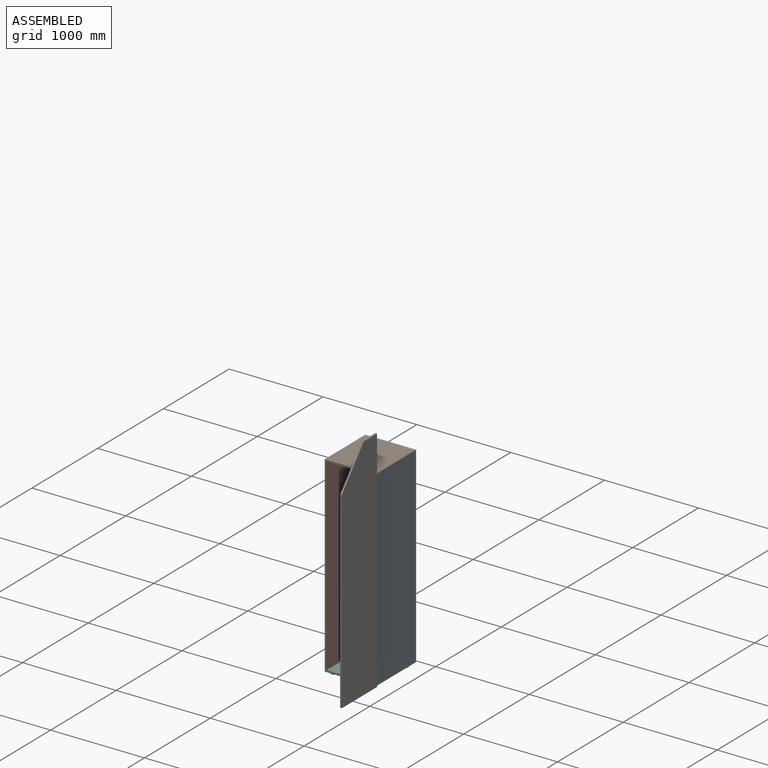
[diagram: assembled view]
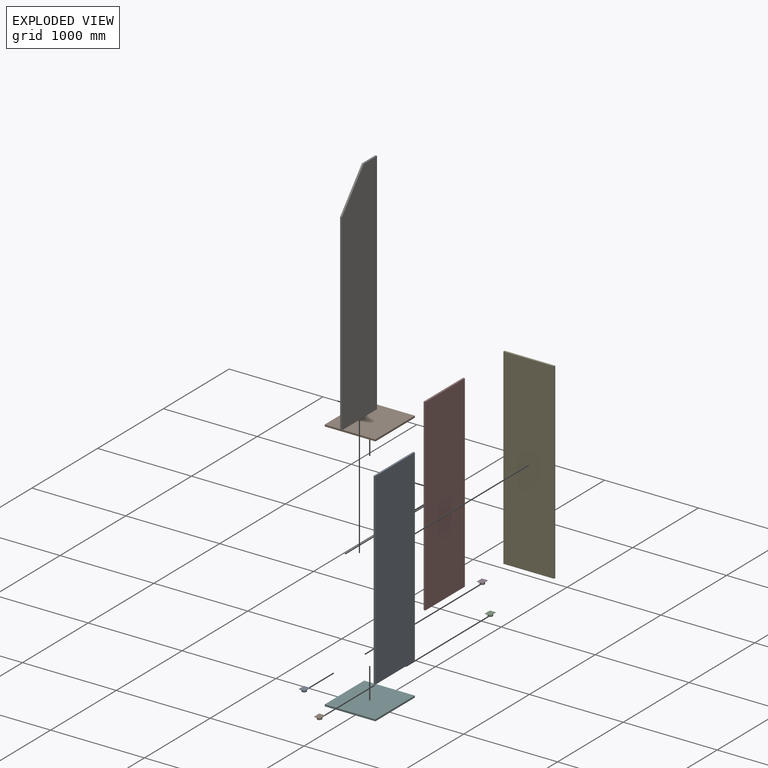
[diagram: exploded view]
GUIDED TOUR — FREECAD ASSEMBLY "wardrobe_corpus00_jan"

This assembly has 10 components, labeled P0..P9 below (a component is one placed body or linked part; the same part can appear more than once), held together by 9 modeled joints. A joint is a constraint between two components; its type names the relative motion it leaves free:
  FASTENED — locks the two components together rigidly (no relative motion),
  REVOLUTE — leaves rotation about the listed axis free (a hinge).
Axis/direction vectors are unit vectors and 'through' points are millimeter coordinates, both in the assembly's world frame.

MATES
  1. FASTENED [Fixed] "Joint002": P4 <-> P5, direction (-1.000, 0.000, 0.000) through (0.00, 300.00, 0.00) mm
  2. FASTENED [Fixed] "Joint": P8 <-> P5, direction (0.000, 1.000, 0.000) through (270.00, 0.00, 19.00) mm
  3. FASTENED [Fixed] "Joint003": P7 <-> P5, direction (0.000, 1.000, 0.000) through (-270.00, 0.00, 19.00) mm
  4. FASTENED [Fixed] "Joint004": P9 <-> P8, direction (0.000, 1.000, 0.000) through (270.00, 0.00, 2026.00) mm
  5. FASTENED [Fixed] "Joint005": P0 <-> P5, direction (0.000, 1.000, 0.000) through (-270.00, -300.00, 0.00) mm
  6. FASTENED [Fixed] "Joint006": P5 <-> P1, direction (0.000, 1.000, 0.000) through (250.00, -240.00, 0.00) mm
  7. FASTENED [Fixed] "Joint007": P2 <-> P5, direction (0.000, -1.000, 0.000) through (270.00, 300.00, 0.00) mm
  8. FASTENED [Fixed] "Joint008": P3 <-> P5, direction (0.000, 1.000, 0.000) through (-270.00, 300.00, 0.00) mm
  9. REVOLUTE [Revolute] "Joint009": P6 <-> P5, axis (0.000, 0.000, 1.000) through (270.00, -300.00, 2.50) mm

ASSEMBLY ORDER
  1. P8 — the base component [order verified]
  2. P7 [order verified]
  3. P5 [order verified]
  4. P3 [order verified]
  5. P1 [order verified]
  6. P2 [order verified]
  7. P0 [order verified]
  8. P9 [order verified]
  9. P6 [order verified]
  10. P4 [order verified]
Order-tag legend:
  [order verified] — this step's position reverses a verified removal order: the component was checked to insert without passing through the ones already placed.

Of the 10 components, 6 carry a construction recipe — the FreeCAD feature program (sketches with constraints, then the solid features that consume them) that regenerates the part from scratch, quoted from this document or from the linked companion document it references; the rest are supplied as boundary geometry only. The tour below walks the components in assembly order: each is shown spotlighted twice — in the assembled view, then in the exploded view, where a leader line traces a displaced component back to its assembled socket (components that stay in place when exploded have no leader line; saturated green if recipe-attached, orange if geometry-only; every other component desaturated gray) — followed by its recipe or geometry summary and the mates that hold it.
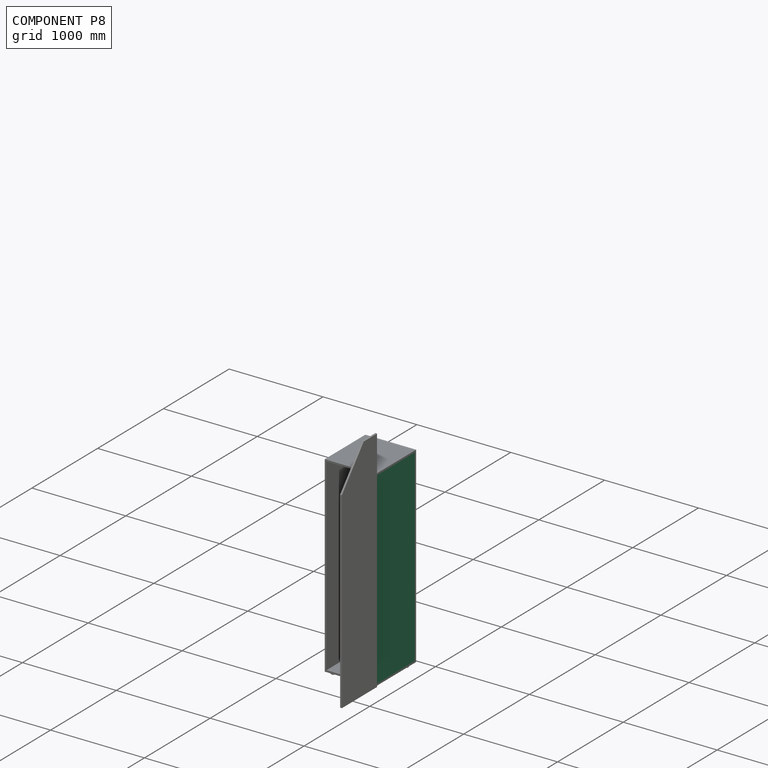
[diagram: component P8 — assembled]
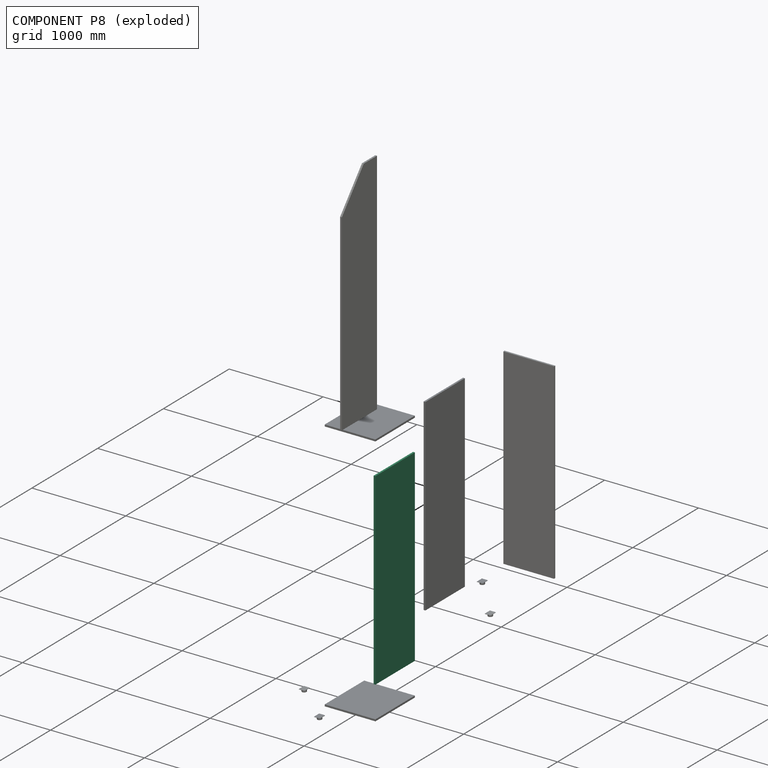
[diagram: component P8 — exploded]
COMPONENT P8 — recipe-attached ("wardrobe_right_corpus00_jan", a linked part whose construction recipe lives in a companion FreeCAD document of the same project; that document's serialized recipe follows).
Held by: FASTENED mate "Joint" to P5; FASTENED mate "Joint004" to P9.
Construction recipe (the companion document, serialized — sketch geometry with constraints, then the solid features built on it; lengths are millimeters unless a unit is written):

FCSTD DOCUMENT  (FreeCAD 1.0RUnknown)
Label: wardrobe_right_corpus00_jan
License: All rights reserved
LicenseURL: https://en.wikipedia.org/wiki/All_rights_reserved
objects: Sketcher::SketchObject×1, PartDesign::Pad×1, PartDesign::CoordinateSystem×1, PartDesign::Body×1
note: 7 computed .brp shape members not serialized (recipe doc carries the construction recipe); baked Part::Feature solids carry a one-line shape summary decoded from their .brp
EXTERNAL_REF file=../../mastersketch.FCStd obj=Spreadsheet

FEATURE [Sketcher::SketchObject] Sketch002
  ArcFitTolerance = 1e-06
  AttachmentSupport = -> [YZ_Plane004]
  FullyConstrained = true
  MakeInternals = true
  MapMode = 5
  Placement = pos=(0,0,0) rot=(0.57735,0.57735,0.57735;2.0944rad)
  expr: Constraints[10] = mastersketch#Spreadsheet.corpus_depth
  expr: Constraints[11] = mastersketch#Spreadsheet.corpus_height - 2 * mastersketch#Spreadsheet.corpus_outer_thickness
  sketch-geometry (5):
    g0: LineSegment StartX=-300 StartY=-1003.5 StartZ=0 EndX=300 EndY=-1003.5 EndZ=0
    g1: LineSegment StartX=300 StartY=-1003.5 StartZ=0 EndX=300 EndY=1003.5 EndZ=0
    g2: LineSegment StartX=300 StartY=1003.5 StartZ=0 EndX=-300 EndY=1003.5 EndZ=0
    g3: LineSegment StartX=-300 StartY=1003.5 StartZ=0 EndX=-300 EndY=-1003.5 EndZ=0
    g4: GeomPoint [constr] X=0 Y=0 Z=0
  constraints (12):
    c: Coincident(g0,g1)
    c: Coincident(g1,g2)
    c: Coincident(g2,g3)
    c: Coincident(g3,g0)
    c: Horizontal(g0)
    c: Horizontal(g2)
    c: Vertical(g1)
    c: Vertical(g3)
    c: Symmetric(g2,g0,g4)
    c: Coincident(g4,g-1)
    c: DistanceX(g0,g0) = 600
    c: DistanceY(g3,g3) = 2007
FEATURE [PartDesign::Pad] Pad002
  Direction = (1,0,0)
  Length = 19
  Length2 = 10
  Placement = pos=(0,0,0) rot=(1,1,1;2.0944rad)
  Profile = -> Sketch002
  ReferenceAxis = -> Sketch002 [N_Axis]
  Refine = true
  Suppressed = false
  Type = 0
  expr: Length = mastersketch#Spreadsheet.corpus_outer_thickness
FEATURE [PartDesign::CoordinateSystem] LCS_bottom
  AttacherType = Attacher::AttachEngine3D
  AttachmentSupport = -> [Pad002]
  MapMode = 45
  Placement = pos=(19,-1.82e-14,-1003.5) rot=(0,0.707107,0.707107;3.14159rad)
FEATURE [PartDesign::Body] Body002  label="wardrobe_right_corpus00_jan"
  AllowCompound = false
  Group = -> [Sketch002,Pad002,LCS_bottom]
  Origin = -> Origin004
  Tip = -> Pad002
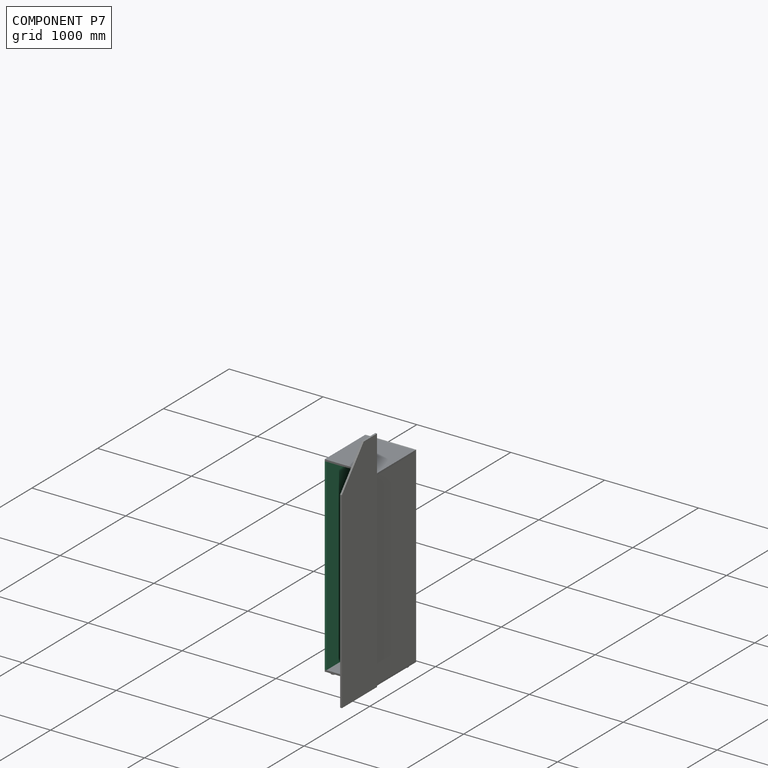
[diagram: component P7 — assembled]
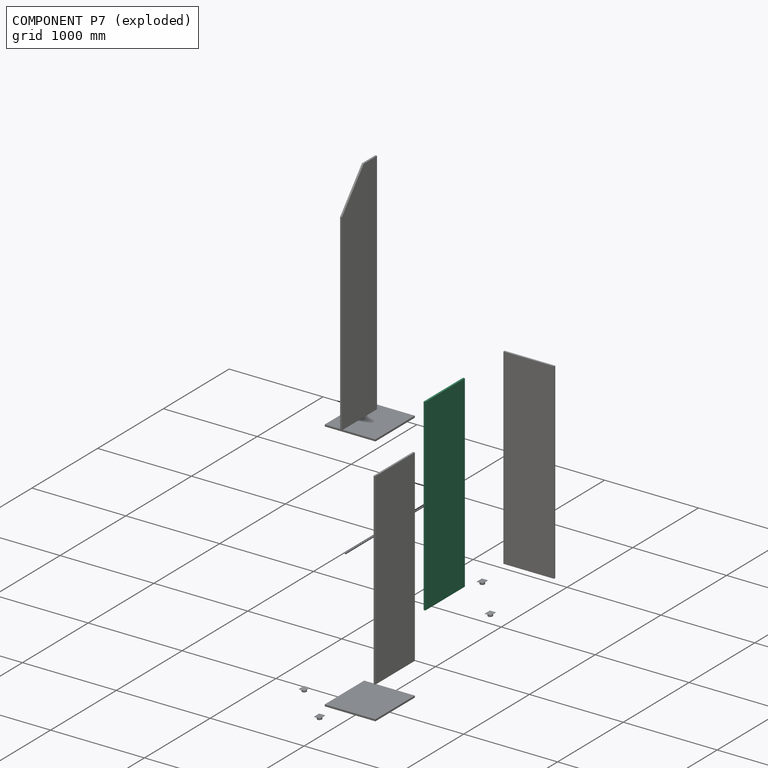
[diagram: component P7 — exploded]
COMPONENT P7 — recipe-attached ("wardrobe_left_corpus00_jan", a linked part whose construction recipe lives in a companion FreeCAD document of the same project; that document's serialized recipe follows).
Held by: FASTENED mate "Joint003" to P5.
Construction recipe (the companion document, serialized — sketch geometry with constraints, then the solid features built on it; lengths are millimeters unless a unit is written):

FCSTD DOCUMENT  (FreeCAD 1.0RUnknown)
Label: wardrobe_left_corpus00_jan
License: All rights reserved
LicenseURL: https://en.wikipedia.org/wiki/All_rights_reserved
objects: PartDesign::CoordinateSystem×3, Sketcher::SketchObject×1, PartDesign::Pad×1, PartDesign::Body×1
note: 9 computed .brp shape members not serialized (recipe doc carries the construction recipe); baked Part::Feature solids carry a one-line shape summary decoded from their .brp
EXTERNAL_REF file=../../mastersketch.FCStd obj=Spreadsheet

FEATURE [Sketcher::SketchObject] Sketch001
  ArcFitTolerance = 1e-06
  AttachmentSupport = -> [YZ_Plane001]
  FullyConstrained = true
  MakeInternals = false
  MapMode = 5
  Placement = pos=(0,0,0) rot=(0.57735,0.57735,0.57735;2.0944rad)
  expr: Constraints[10] = mastersketch#Spreadsheet.corpus_depth
  expr: Constraints[11] = mastersketch#Spreadsheet.corpus_height - 2 * mastersketch#Spreadsheet.corpus_outer_thickness
  sketch-geometry (5):
    g0: LineSegment StartX=-300 StartY=-1003.5 StartZ=0 EndX=300 EndY=-1003.5 EndZ=0
    g1: LineSegment StartX=300 StartY=-1003.5 StartZ=0 EndX=300 EndY=1003.5 EndZ=0
    g2: LineSegment StartX=300 StartY=1003.5 StartZ=0 EndX=-300 EndY=1003.5 EndZ=0
    g3: LineSegment StartX=-300 StartY=1003.5 StartZ=0 EndX=-300 EndY=-1003.5 EndZ=0
    g4: GeomPoint [constr] X=0 Y=0 Z=0
  constraints (12):
    c: Coincident(g0,g1)
    c: Coincident(g1,g2)
    c: Coincident(g2,g3)
    c: Coincident(g3,g0)
    c: Horizontal(g0)
    c: Horizontal(g2)
    c: Vertical(g1)
    c: Vertical(g3)
    c: Symmetric(g2,g0,g4)
    c: Coincident(g4,g-1)
    c: DistanceX(g0,g0) = 600
    c: DistanceY(g3,g3) = 2007
FEATURE [PartDesign::Pad] Pad001
  Direction = (1,0,0)
  Length = 19
  Length2 = 10
  Placement = pos=(0,0,0) rot=(1,1,1;2.0944rad)
  Profile = -> Sketch001
  ReferenceAxis = -> Sketch001 [N_Axis]
  Refine = true
  Suppressed = false
  Type = 0
  expr: Length = mastersketch#Spreadsheet.corpus_outer_thickness
FEATURE [PartDesign::CoordinateSystem] LCS_bottom
  AttacherType = Attacher::AttachEngine3D
  AttachmentSupport = -> [Pad001]
  MapMode = 45
  Placement = pos=(0,-1.42e-14,-1003.5) rot=(0,0.707107,0.707107;3.14159rad)
FEATURE [PartDesign::CoordinateSystem] LCS_top
  AttacherType = Attacher::AttachEngine3D
  AttachmentSupport = -> [Pad001]
  MapMode = 45
  Placement = pos=(0,1.42e-14,1003.5) rot=(0,0.707107,0.707107;3.14159rad)
FEATURE [PartDesign::CoordinateSystem] LCS_inner_bottom
  AttacherType = Attacher::AttachEngine3D
  AttachmentSupport = -> [Pad001]
  MapMode = 45
  Placement = pos=(19,-1.82e-14,-1003.5) rot=(0,0.707107,0.707107;3.14159rad)
FEATURE [PartDesign::Body] Body001  label="wardrobe_left_corpus00_jan"
  AllowCompound = false
  Group = -> [Sketch001,Pad001,LCS_bottom,LCS_top,LCS_inner_bottom]
  Origin = -> Origin001
  Tip = -> Pad001
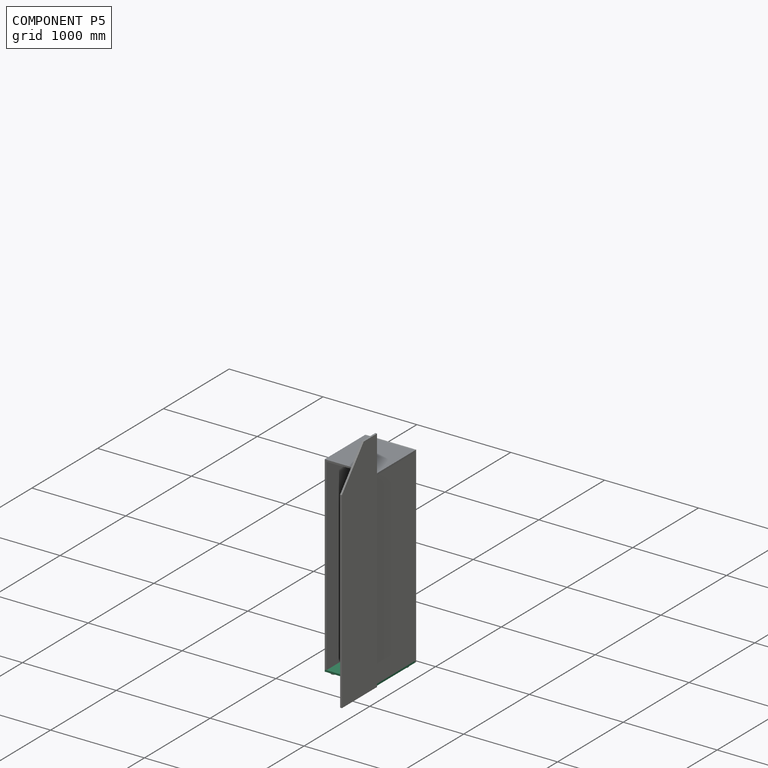
[diagram: component P5 — assembled]
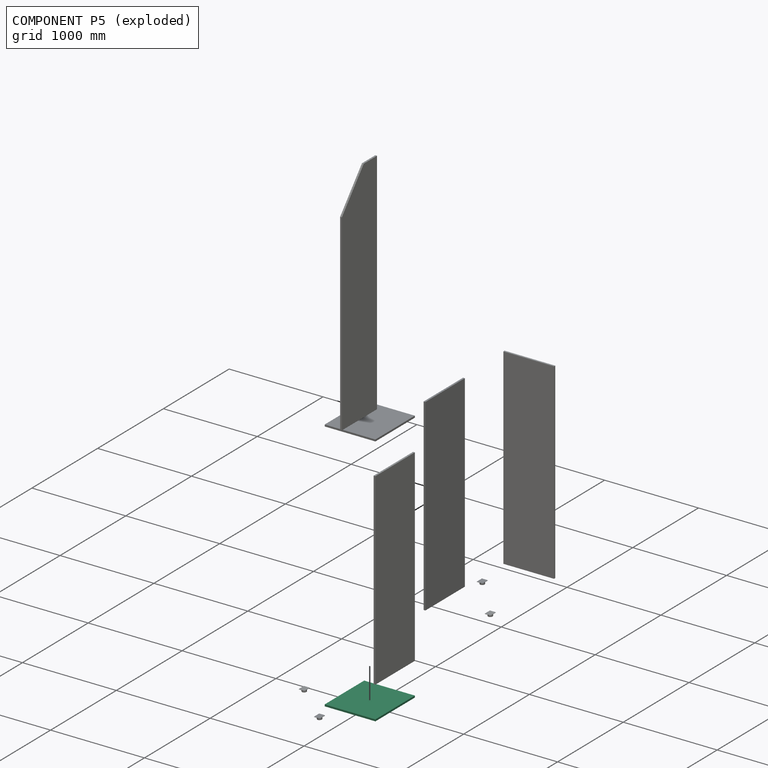
[diagram: component P5 — exploded]
COMPONENT P5 — recipe-attached ("wardrobe_base_jan", a linked part whose construction recipe lives in a companion FreeCAD document of the same project; that document's serialized recipe follows).
Held by: FASTENED mate "Joint002" to P4; FASTENED mate "Joint" to P8; FASTENED mate "Joint003" to P7; FASTENED mate "Joint005" to P0; FASTENED mate "Joint006" to P1; FASTENED mate "Joint007" to P2; FASTENED mate "Joint008" to P3; REVOLUTE mate "Joint009" to P6.
Construction recipe (the companion document, serialized — sketch geometry with constraints, then the solid features built on it; lengths are millimeters unless a unit is written):

FCSTD DOCUMENT  (FreeCAD 1.0RUnknown)
Label: wardrobe_base_jan
License: All rights reserved
LicenseURL: https://en.wikipedia.org/wiki/All_rights_reserved
objects: PartDesign::CoordinateSystem×9, Sketcher::SketchObject×2, PartDesign::Pad×1, PartDesign::Body×1
note: 17 computed .brp shape members not serialized (recipe doc carries the construction recipe); baked Part::Feature solids carry a one-line shape summary decoded from their .brp
EXTERNAL_REF file=../../mastersketch.FCStd obj=Spreadsheet

FEATURE [Sketcher::SketchObject] Sketch
  ArcFitTolerance = 1e-06
  AttachmentSupport = -> [XY_Plane]
  FullyConstrained = true
  MakeInternals = false
  MapMode = 5
  expr: Constraints[10] = mastersketch#Spreadsheet.corpus_width
  expr: Constraints[11] = mastersketch#Spreadsheet.corpus_depth
  sketch-geometry (5):
    g0: LineSegment StartX=-270 StartY=-300 StartZ=0 EndX=270 EndY=-300 EndZ=0
    g1: LineSegment StartX=270 StartY=-300 StartZ=0 EndX=270 EndY=300 EndZ=0
    g2: LineSegment StartX=270 StartY=300 StartZ=0 EndX=-270 EndY=300 EndZ=0
    g3: LineSegment StartX=-270 StartY=300 StartZ=0 EndX=-270 EndY=-300 EndZ=0
    g4: GeomPoint [constr] X=0 Y=0 Z=0
  constraints (12):
    c: Coincident(g0,g1)
    c: Coincident(g1,g2)
    c: Coincident(g2,g3)
    c: Coincident(g3,g0)
    c: Horizontal(g0)
    c: Horizontal(g2)
    c: Vertical(g1)
    c: Vertical(g3)
    c: Symmetric(g2,g0,g4)
    c: Coincident(g4,g-1)
    c: DistanceX(g0,g0) = 540
    c: DistanceY(g3,g3) = 600
FEATURE [PartDesign::Pad] Pad
  Direction = (0,0,1)
  Length = 19
  Length2 = 10
  Profile = -> Sketch
  ReferenceAxis = -> Sketch [N_Axis]
  Refine = true
  Suppressed = false
  Type = 0
  expr: Length = mastersketch#Spreadsheet.corpus_outer_thickness
FEATURE [PartDesign::CoordinateSystem] LCS_1  label="LCS_left"
  AttacherType = Attacher::AttachEngine3D
  AttachmentSupport = -> [Pad]
  MapMode = 45
  Placement = pos=(-270,1.42e-14,19) rot=(0,0.707107,0.707107;3.14159rad)
FEATURE [PartDesign::CoordinateSystem] LCS_right  label="LCS-right"
  AttacherType = Attacher::AttachEngine3D
  AttachmentSupport = -> [Pad]
  MapMode = 45
  Placement = pos=(270,-1.42e-14,19) rot=(0,0.707107,0.707107;3.14159rad)
FEATURE [PartDesign::CoordinateSystem] LCS_center
  AttacherType = Attacher::AttachEngine3D
FEATURE [Sketcher::SketchObject] Sketch_1  label="feet_placement"
  ArcFitTolerance = 1e-06
  AttachmentSupport = -> [Pad]
  FullyConstrained = true
  MakeInternals = false
  MapMode = 5
  Placement = pos=(0,0,0) rot=(1,0,0;3.14159rad)
  expr: Constraints[10] = mastersketch#Spreadsheet.corpus_width - 100
  expr: Constraints[11] = mastersketch#Spreadsheet.corpus_depth - 140
  sketch-geometry (5):
    g0: LineSegment StartX=-220 StartY=-230 StartZ=0 EndX=220 EndY=-230 EndZ=0
    g1: LineSegment StartX=220 StartY=-230 StartZ=0 EndX=220 EndY=230 EndZ=0
    g2: LineSegment StartX=220 StartY=230 StartZ=0 EndX=-220 EndY=230 EndZ=0
    g3: LineSegment StartX=-220 StartY=230 StartZ=0 EndX=-220 EndY=-230 EndZ=0
    g4: GeomPoint [constr] X=0 Y=0 Z=0
  constraints (12):
    c: Coincident(g0,g1)
    c: Coincident(g1,g2)
    c: Coincident(g2,g3)
    c: Coincident(g3,g0)
    c: Horizontal(g0)
    c: Horizontal(g2)
    c: Vertical(g1)
    c: Vertical(g3)
    c: Symmetric(g2,g0,g4)
    c: Coincident(g4,g-1)
    c: DistanceX(g0,g0) = 440
    c: DistanceY(g3,g3) = 460
FEATURE [PartDesign::CoordinateSystem] LCS_2  label="LCS_feet0"
  AttacherType = Attacher::AttachEngine3D
  AttachmentSupport = -> [Sketch_1]
  MapMode = 1
  Placement = pos=(-220,-230,0) rot=(0,0,1;0rad)
FEATURE [PartDesign::CoordinateSystem] LCS_feet1
  AttacherType = Attacher::AttachEngine3D
  AttachmentSupport = -> [Sketch_1]
  MapMode = 1
  Placement = pos=(220,-230,0) rot=(0,0,1;0rad)
FEATURE [PartDesign::CoordinateSystem] LCS_feet2
  AttacherType = Attacher::AttachEngine3D
  AttachmentSupport = -> [Sketch_1]
  MapMode = 1
  Placement = pos=(220,230,0) rot=(0,0,1;0rad)
FEATURE [PartDesign::CoordinateSystem] LCS_feet3
  AttacherType = Attacher::AttachEngine3D
  AttachmentSupport = -> [Sketch_1]
  MapMode = 1
  Placement = pos=(-220,230,0) rot=(0,0,1;0rad)
FEATURE [PartDesign::CoordinateSystem] LCS_back
  AttacherType = Attacher::AttachEngine3D
  AttachmentSupport = -> [Pad]
  MapMode = 45
  Placement = pos=(0,300,0) rot=(0.57735,0.57735,0.57735;2.0944rad)
FEATURE [PartDesign::CoordinateSystem] LCS_door
  AttacherType = Attacher::AttachEngine3D
  AttachmentSupport = -> [Pad]
  MapMode = 7
  Placement = pos=(270,-300,0) rot=(0,1,0;3.14159rad)
FEATURE [PartDesign::Body] Body  label="wardrobe_base_jan"
  AllowCompound = false
  Group = -> [Sketch,Pad,LCS_1,LCS_right,LCS_center,Sketch_1,LCS_2,LCS_feet1,LCS_feet2,LCS_feet3,LCS_back,LCS_door]
  Origin = -> Origin
  Tip = -> Pad
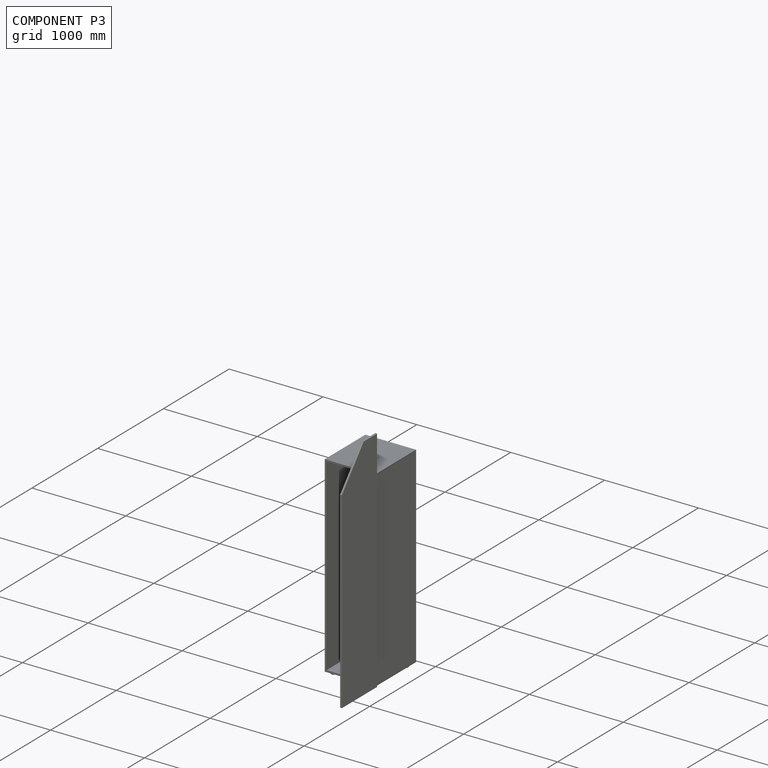
[diagram: component P3 — assembled]
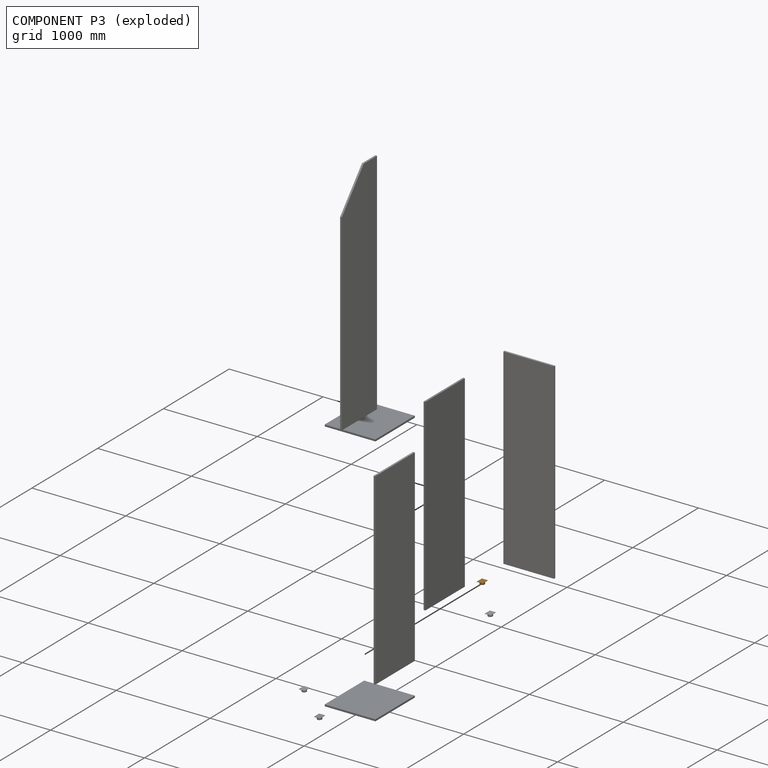
[diagram: component P3 — exploded]
COMPONENT P3 — geometry summary ("hettich-level-adjustment003"; no construction recipe available for this part):
  bounding box: 80.0 x 63.5 x 30.0 mm
  tessellated surface: 2,424 triangles
  volume: 65169 mm^3 (43% of its bounding box)
  symmetry: 2-fold rotationally symmetric about the z axis; mirror-symmetric across its x mid-plane, y mid-plane
Held by: FASTENED mate "Joint008" to P5.
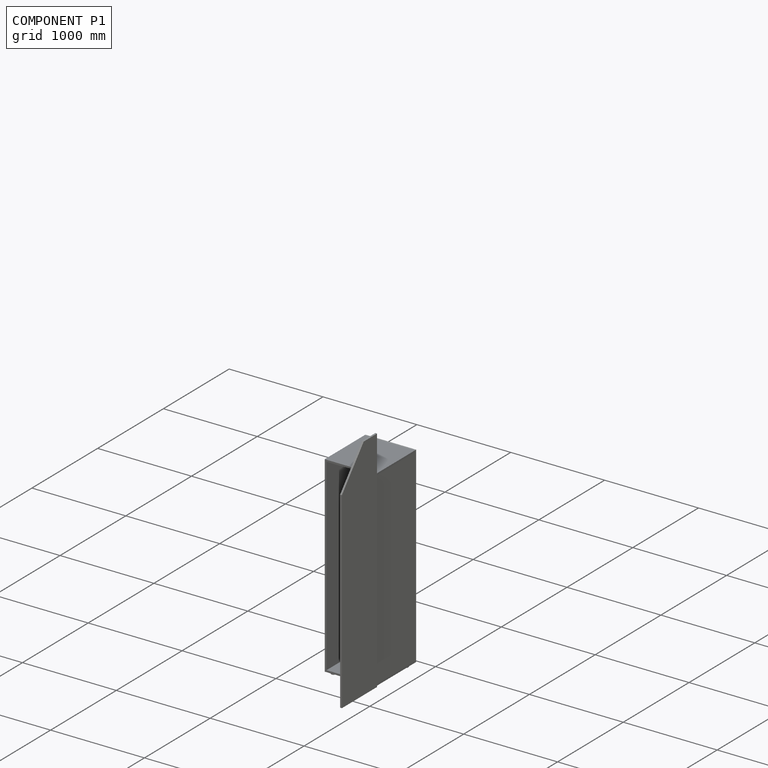
[diagram: component P1 — assembled]
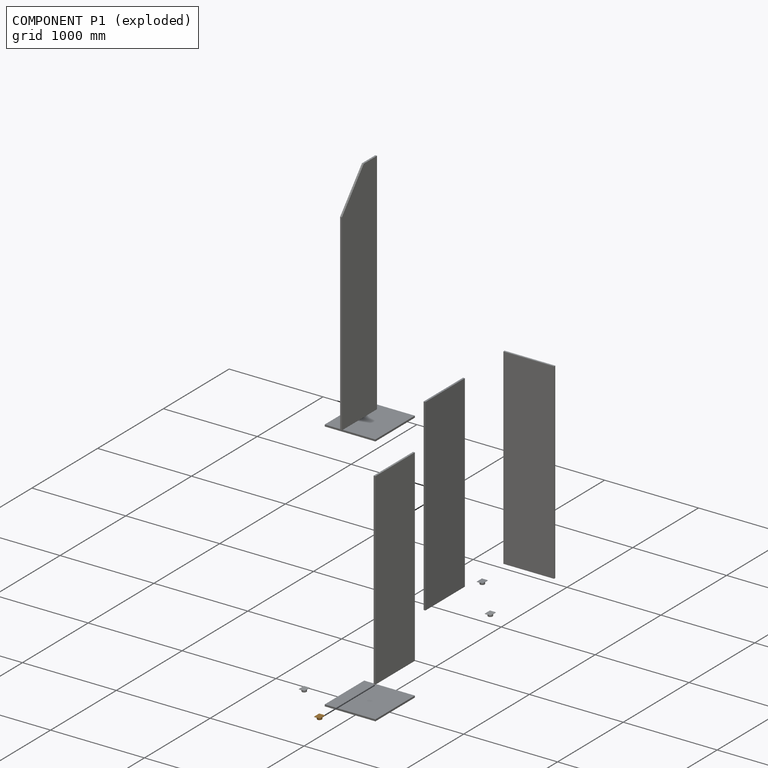
[diagram: component P1 — exploded]
COMPONENT P1 — geometry summary ("hettich-level-adjustment001"; no construction recipe available for this part):
  bounding box: 80.0 x 63.5 x 30.0 mm
  tessellated surface: 2,424 triangles
  volume: 65169 mm^3 (43% of its bounding box)
  symmetry: 2-fold rotationally symmetric about the z axis; mirror-symmetric across its x mid-plane, y mid-plane
Held by: FASTENED mate "Joint006" to P5.
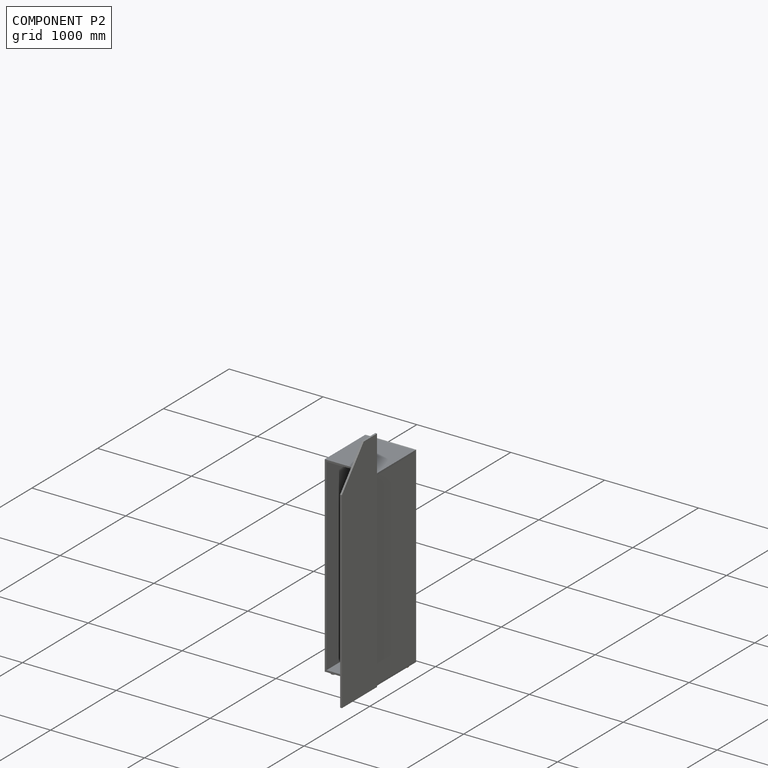
[diagram: component P2 — assembled]
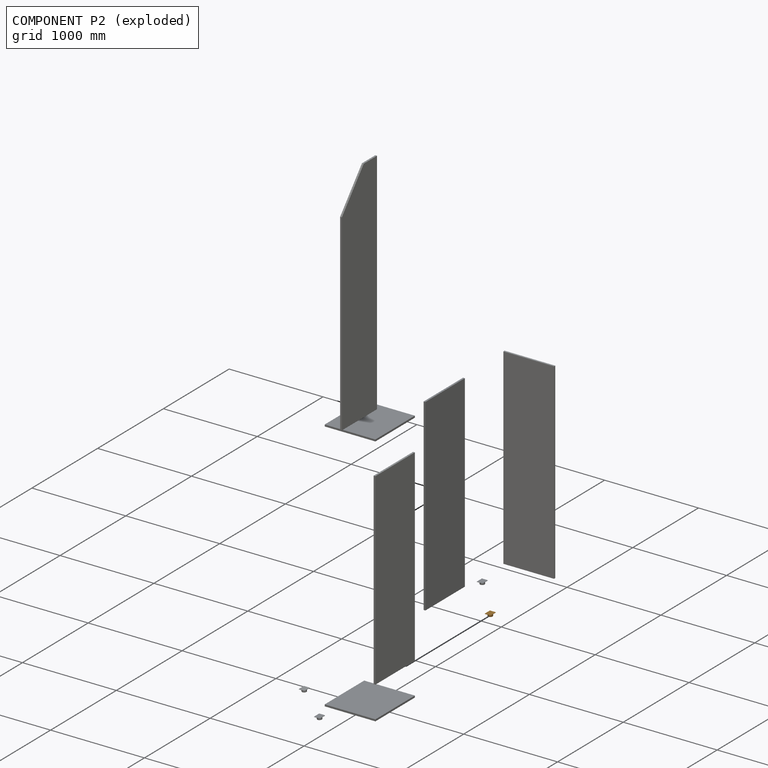
[diagram: component P2 — exploded]
COMPONENT P2 — geometry summary ("hettich-level-adjustment002"; no construction recipe available for this part):
  bounding box: 80.0 x 63.5 x 30.0 mm
  tessellated surface: 2,424 triangles
  volume: 65169 mm^3 (43% of its bounding box)
  symmetry: 2-fold rotationally symmetric about the z axis; mirror-symmetric across its x mid-plane, y mid-plane
Held by: FASTENED mate "Joint007" to P5.
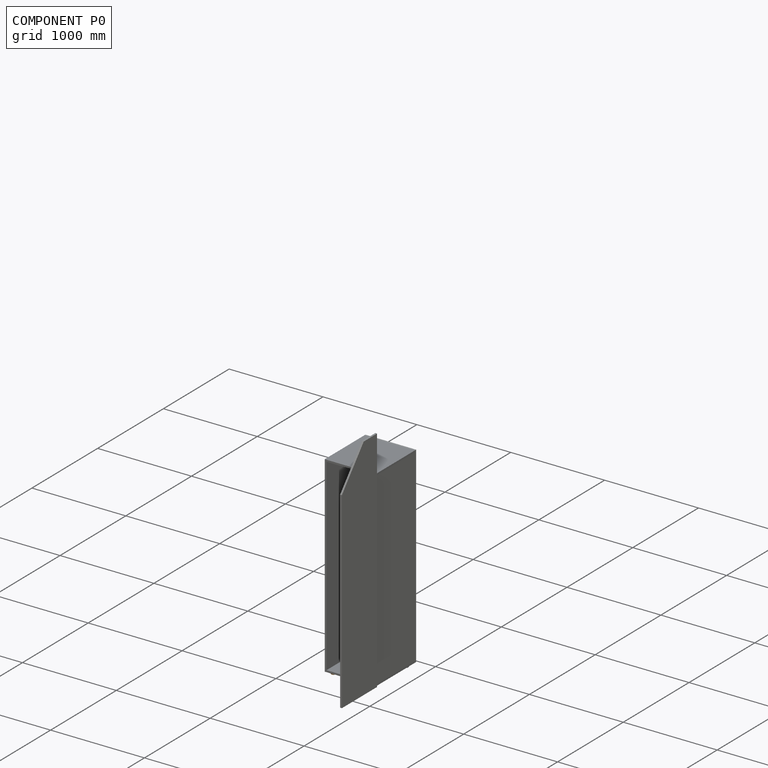
[diagram: component P0 — assembled]
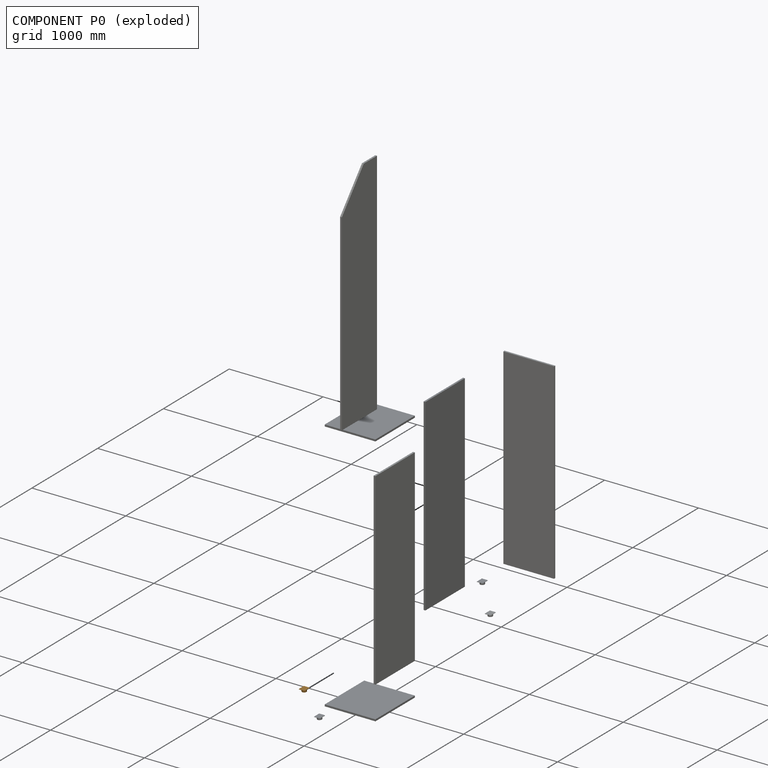
[diagram: component P0 — exploded]
COMPONENT P0 — geometry summary ("hettich-level-adjustment"; no construction recipe available for this part):
  bounding box: 80.0 x 63.5 x 30.0 mm
  tessellated surface: 2,424 triangles
  volume: 65169 mm^3 (43% of its bounding box)
  symmetry: 2-fold rotationally symmetric about the z axis; mirror-symmetric across its x mid-plane, y mid-plane
Held by: FASTENED mate "Joint005" to P5.
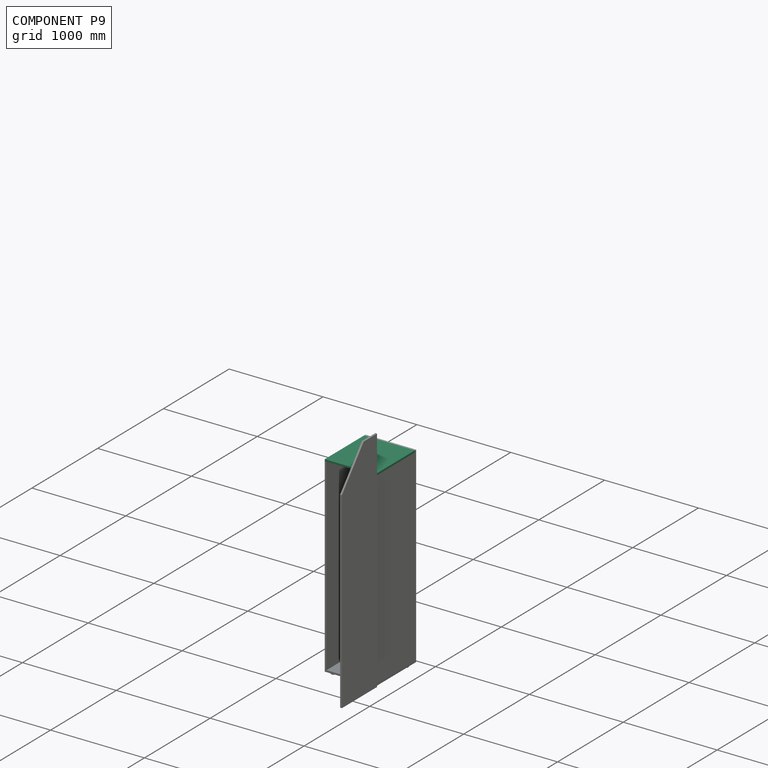
[diagram: component P9 — assembled]
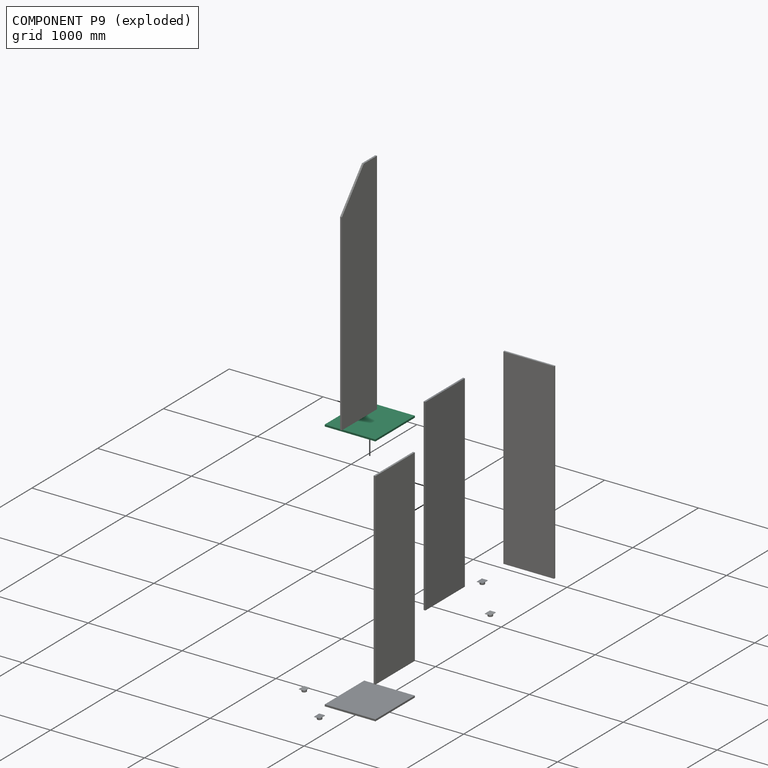
[diagram: component P9 — exploded]
COMPONENT P9 — recipe-attached ("wardrobe_top_jan", a linked part whose construction recipe lives in a companion FreeCAD document of the same project; that document's serialized recipe follows).
Held by: FASTENED mate "Joint004" to P8.
Construction recipe (the companion document, serialized — sketch geometry with constraints, then the solid features built on it; lengths are millimeters unless a unit is written):

FCSTD DOCUMENT  (FreeCAD 1.0RUnknown)
Label: wardrobe_top_jan
License: All rights reserved
LicenseURL: https://en.wikipedia.org/wiki/All_rights_reserved
objects: Sketcher::SketchObject×1, PartDesign::Pad×1, PartDesign::CoordinateSystem×1, PartDesign::Body×1
note: 7 computed .brp shape members not serialized (recipe doc carries the construction recipe); baked Part::Feature solids carry a one-line shape summary decoded from their .brp
EXTERNAL_REF file=../../mastersketch.FCStd obj=Spreadsheet

FEATURE [Sketcher::SketchObject] Sketch003
  ArcFitTolerance = 1e-06
  AttachmentSupport = -> [XY_Plane005]
  FullyConstrained = true
  MakeInternals = false
  MapMode = 5
  expr: Constraints[10] = mastersketch#Spreadsheet.corpus_width
  expr: Constraints[11] = mastersketch#Spreadsheet.corpus_depth
  sketch-geometry (5):
    g0: LineSegment StartX=-270 StartY=-300 StartZ=0 EndX=270 EndY=-300 EndZ=0
    g1: LineSegment StartX=270 StartY=-300 StartZ=0 EndX=270 EndY=300 EndZ=0
    g2: LineSegment StartX=270 StartY=300 StartZ=0 EndX=-270 EndY=300 EndZ=0
    g3: LineSegment StartX=-270 StartY=300 StartZ=0 EndX=-270 EndY=-300 EndZ=0
    g4: GeomPoint [constr] X=0 Y=0 Z=0
  constraints (12):
    c: Coincident(g0,g1)
    c: Coincident(g1,g2)
    c: Coincident(g2,g3)
    c: Coincident(g3,g0)
    c: Horizontal(g0)
    c: Horizontal(g2)
    c: Vertical(g1)
    c: Vertical(g3)
    c: Symmetric(g2,g0,g4)
    c: Coincident(g4,g-1)
    c: DistanceX(g0,g0) = 540
    c: DistanceY(g3,g3) = 600
FEATURE [PartDesign::Pad] Pad003
  Direction = (0,0,1)
  Length = 19
  Length2 = 10
  Profile = -> Sketch003
  ReferenceAxis = -> Sketch003 [N_Axis]
  Refine = true
  Suppressed = false
  Type = 0
  expr: Length = mastersketch#Spreadsheet.corpus_outer_thickness
FEATURE [PartDesign::CoordinateSystem] LCS_left
  AttacherType = Attacher::AttachEngine3D
  AttachmentSupport = -> [Pad003]
  MapMode = 45
  Placement = pos=(-270,1.42e-14,0) rot=(0,0.707107,0.707107;3.14159rad)
FEATURE [PartDesign::Body] Body003  label="wardrobe_top_jan"
  AllowCompound = false
  Group = -> [Sketch003,Pad003,LCS_left]
  Origin = -> Origin005
  Tip = -> Pad003
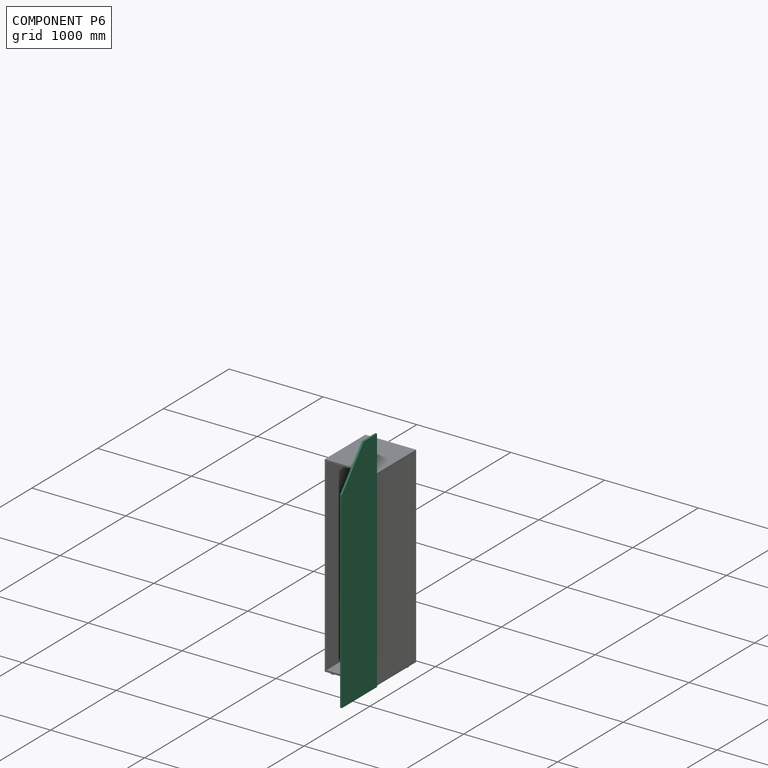
[diagram: component P6 — assembled]
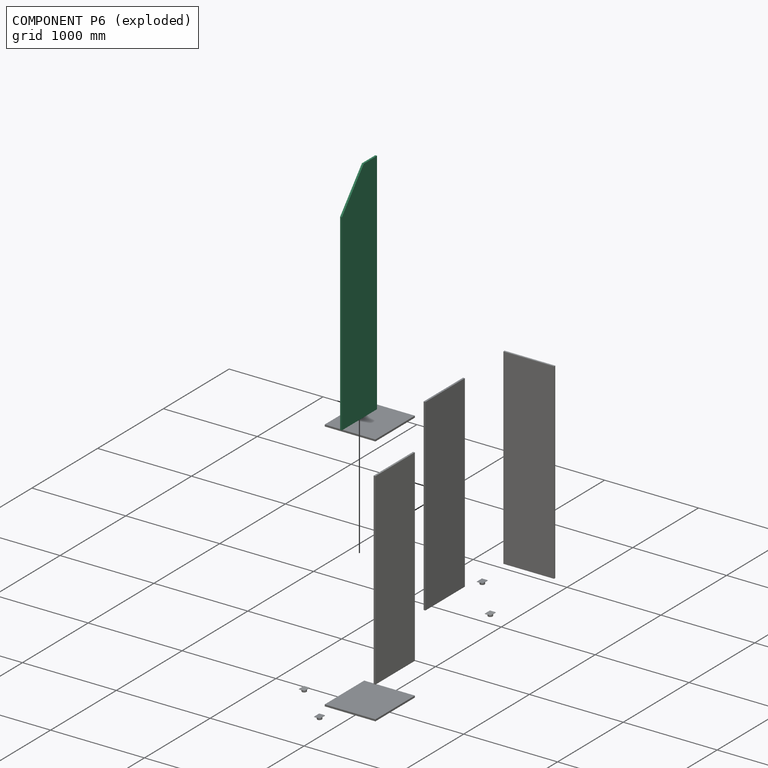
[diagram: component P6 — exploded]
COMPONENT P6 — recipe-attached ("wardrobe_door_corpus00_jan", a linked part whose construction recipe lives in a companion FreeCAD document of the same project; that document's serialized recipe follows).
Held by: REVOLUTE mate "Joint009" to P5.
Construction recipe (the companion document, serialized — sketch geometry with constraints, then the solid features built on it; lengths are millimeters unless a unit is written):

FCSTD DOCUMENT  (FreeCAD 1.0R39285 (Git))
Label: wardrobe_door_corpus00_jan
License: All rights reserved
LicenseURL: https://en.wikipedia.org/wiki/All_rights_reserved
objects: TechDraw::DrawViewDimension×7, PartDesign::CoordinateSystem×2, TechDraw::DrawProjGroupItem×2, Sketcher::SketchObject×1, PartDesign::Pad×1, PartDesign::Body×1, TechDraw::DrawSVGTemplate×1, TechDraw::DrawViewAnnotation×1, App::Part×1, TechDraw::DrawPage×1
note: 17 computed .brp shape members not serialized (recipe doc carries the construction recipe); baked Part::Feature solids carry a one-line shape summary decoded from their .brp
EXTERNAL_REF file=../../mastersheet.FCStd obj=Spreadsheet
EXTERNAL_REF file=../../mastersketch.FCStd obj=Sketch

FEATURE [Sketcher::SketchObject] Sketch
  ArcFitTolerance = 1e-06
  AttachmentSupport = -> [XY_Plane]
  FullyConstrained = true
  MakeInternals = false
  MapMode = 5
  expr: Constraints[0] = mastersketch#Sketch.Constraints.corpus00_door_height
  expr: Constraints[12] = mastersketch#Sketch.Constraints.alpha
  expr: Constraints[13] = mastersketch#Sketch.Constraints.corpus00_door_top
  expr: Constraints[5] = mastersheet#Spreadsheet.corpus_width - 5
  sketch-geometry (5):
    g0: LineSegment StartX=0 StartY=0 StartZ=0 EndX=0 EndY=2440 EndZ=0
    g1: LineSegment StartX=0 StartY=2440 StartZ=0 EndX=-202.892 EndY=2440 EndZ=0
    g2: LineSegment StartX=0 StartY=0 StartZ=0 EndX=-535 EndY=0 EndZ=0
    g3: LineSegment StartX=-535 StartY=0 StartZ=0 EndX=-535 EndY=2051.4 EndZ=0
    g4: LineSegment StartX=-535 StartY=2051.4 StartZ=0 EndX=-202.892 EndY=2440 EndZ=0
  constraints (14):
    c: Distance(g0) = 2440
    c: Coincident(g0,g-1)
    c: Vertical(g0)
    c: Coincident(g1,g0)
    c: Horizontal(g1)
    c: Distance(g2) = 535
    c: Coincident(g2,g0)
    c: PointOnObject(g2,g-1)
    c: Vertical(g3)
    c: Coincident(g4,g1)
    c: Coincident(g4,g3)
    c: Coincident(g3,g2)
    c: Angle(g3,g4) = 2.43442
    c: DistanceX(g1,g1) = 202.892
FEATURE [PartDesign::Pad] Pad
  Direction = (0,0,1)
  Length = 19
  Length2 = 10
  Profile = -> Sketch
  ReferenceAxis = -> Sketch [N_Axis]
  Refine = true
  Suppressed = false
  Type = 0
FEATURE [PartDesign::Body] Body  label="wardrobe_door_corpus00_jan"
  AllowCompound = false
  Group = -> [Sketch,Pad]
  Origin = -> Origin
  Tip = -> Pad
FEATURE [PartDesign::CoordinateSystem] LCS_right
  AttacherType = Attacher::AttachEngine3D
  AttachmentSupport = -> [Pad]
  MapMode = 7
  Placement = pos=(0,0,0) rot=(1,0,0;1.5708rad)
FEATURE [TechDraw::DrawSVGTemplate] Template  label="Vorlage"
  Height = 210
  Orientation = 1
  Template = <userpath>/scoop/apps/freecad/current/data/Mod/TechDraw/Templates/A4_Landscape_TD.svg
  Width = 297
FEATURE [TechDraw::DrawProjGroupItem] View  label="Oben"
  CoarseView = false
  Direction = (0,0,-1)
  Focus = 100
  HardHidden = false
  IsoCount = 0
  IsoHidden = false
  IsoVisible = false
  LockPosition = false
  Perspective = false
  Rotation = 0
  RotationVector = (1,0,0)
  Scale = 0.1
  ScaleType = 2
  ScrubCount = 1
  SeamHidden = false
  SeamVisible = false
  SmoothHidden = false
  SmoothVisible = true
  Source = -> [Body]
  Type = 0
  X = 142.185
  XDirection = (1e-16,-1,0)
  Y = 151.82
FEATURE [TechDraw::DrawProjGroupItem] View001  label="Seite"
  CoarseView = false
  Direction = (-1,-1e-16,0)
  Focus = 100
  HardHidden = false
  IsoCount = 0
  IsoHidden = false
  IsoVisible = false
  LockPosition = false
  Perspective = false
  Rotation = 0
  RotationVector = (1,0,0)
  Scale = 0.1
  ScaleType = 2
  ScrubCount = 1
  SeamHidden = false
  SeamVisible = false
  SmoothHidden = false
  SmoothVisible = true
  Source = -> [Body]
  Type = 0
  X = 143.628
  XDirection = (1e-16,-1,0)
  Y = 90.5756
FEATURE [TechDraw::DrawViewDimension] Dimension  label="Maß"
  AngleOverride = false
  Arbitrary = false
  ArbitraryTolerances = false
  BoxCorners = (2) [(-122,-26.75,0),(122,26.75,0)]
  EqualTolerance = true
  ExtensionAngle = 0
  FormatSpec = %.2w
  FormatSpecOverTolerance = %+.2w
  FormatSpecUnderTolerance = %+.2w
  Inverted = false
  LineAngle = 0
  LockPosition = false
  MeasureType = 1
  OverTolerance = 0
  References2D = -> [View]
  Rotation = 0
  ScaleType = 0
  TheoreticalExact = false
  Type = 0
  UnderTolerance = 0
  X = 129.212
  Y = 0
FEATURE [TechDraw::DrawViewDimension] Dimension001  label="Maß001"
  AngleOverride = false
  Arbitrary = false
  ArbitraryTolerances = false
  BoxCorners = (2) [(-122,-26.75,0),(122,26.75,0)]
  EqualTolerance = true
  ExtensionAngle = 0
  FormatSpec = %.2w
  FormatSpecOverTolerance = %+.2w
  FormatSpecUnderTolerance = %+.2w
  Inverted = false
  LineAngle = 0
  LockPosition = false
  MeasureType = 1
  OverTolerance = 0
  References2D = -> [View]
  Rotation = 0
  ScaleType = 0
  TheoreticalExact = false
  Type = 1
  UnderTolerance = 0
  X = 0
  Y = -32.8109
FEATURE [TechDraw::DrawViewDimension] Dimension002  label="Maß002"
  AngleOverride = false
  Arbitrary = false
  ArbitraryTolerances = false
  BoxCorners = (2) [(-122,-26.75,0),(122,26.75,0)]
  EqualTolerance = true
  ExtensionAngle = 0
  FormatSpec = %.2w
  FormatSpecOverTolerance = %+.2w
  FormatSpecUnderTolerance = %+.2w
  Inverted = false
  LineAngle = 0
  LockPosition = false
  MeasureType = 1
  OverTolerance = 0
  References2D = -> [View]
  Rotation = 0
  ScaleType = 0
  TheoreticalExact = false
  Type = 1
  UnderTolerance = 0
  X = 19.43
  Y = 40.4934
FEATURE [TechDraw::DrawViewDimension] Dimension003  label="Maß003"
  AngleOverride = false
  Arbitrary = false
  ArbitraryTolerances = false
  BoxCorners = (2) [(-122,-26.75,0),(122,26.75,0)]
  EqualTolerance = true
  ExtensionAngle = 0
  FormatSpec = %.1w
  FormatSpecOverTolerance = %+.2w
  FormatSpecUnderTolerance = %+.2w
  Inverted = false
  LineAngle = 0
  LockPosition = false
  MeasureType = 1
  OverTolerance = 0
  References2D = -> [View]
  Rotation = 0
  ScaleType = 0
  TheoreticalExact = false
  Type = 2
  UnderTolerance = 0
  X = -102.279
  Y = -16.6054
FEATURE [TechDraw::DrawViewDimension] Dimension004  label="Maß004"
  AngleOverride = false
  Arbitrary = false
  ArbitraryTolerances = false
  BoxCorners = (2) [(-122,-0.9,0),(122,0.9,0)]
  EqualTolerance = true
  ExtensionAngle = 0
  FormatSpec = %.2w
  FormatSpecOverTolerance = %+.2w
  FormatSpecUnderTolerance = %+.2w
  Inverted = false
  LineAngle = 0
  LockPosition = false
  MeasureType = 1
  OverTolerance = 0
  References2D = -> [View001]
  Rotation = 0
  ScaleType = 0
  TheoreticalExact = false
  Type = 0
  UnderTolerance = 0
  X = 124.097
  Y = -13.7815
FEATURE [TechDraw::DrawViewDimension] Dimension005  label="Maß005"
  AngleOverride = false
  Arbitrary = false
  ArbitraryTolerances = false
  BoxCorners = (2) [(-122,-26.75,0),(122,26.75,0)]
  EqualTolerance = true
  ExtensionAngle = 0
  FormatSpec = (%.1w)
  FormatSpecOverTolerance = %+.1w
  FormatSpecUnderTolerance = %+.1w
  Inverted = false
  LineAngle = 0
  LockPosition = false
  MeasureType = 1
  OverTolerance = 0
  References2D = -> [View]
  Rotation = 0
  ScaleType = 0
  TheoreticalExact = false
  Type = 6
  UnderTolerance = 0
  X = -75.6861
  Y = 12.9628
FEATURE [TechDraw::DrawViewAnnotation] Annotation  label="Beschriftung"
  Font = MS Shell Dlg 2
  LineSpace = 100
  LockPosition = false
  MaxWidth = -1
  Rotation = 0
  ScaleType = 0
  Text = Rev 01
  TextSize = 5
  TextStyle = 0
  X = 271.909
  Y = 62.045
FEATURE [PartDesign::CoordinateSystem] LCS_Origin
  AttacherType = Attacher::AttachEngine3D
  AttachmentSupport = -> [X_Axis001]
  MapMode = 2
FEATURE [App::Part] wardrobe_door_corpus00_jan  label="wardrobe_door_corpus00_jan001"
  DrawingName = wardrobe_door_corpus00_jan.FCStd
  Group = -> [LCS_Origin,LCS_right,Body]
  Origin = -> Origin001
  PartDescription = wardrobe_door_corpus00_jan
  PartID = wardrobe_door_corpus00_jan
FEATURE [TechDraw::DrawViewDimension] Dimension006  label="Maß006"
  AngleOverride = false
  Arbitrary = false
  ArbitraryTolerances = false
  BoxCorners = (2) [(-122,-26.75,0),(122,26.75,0)]
  EqualTolerance = true
  ExtensionAngle = 0
  FormatSpec = (%.1w)
  FormatSpecOverTolerance = %+.1w
  FormatSpecUnderTolerance = %+.1w
  Inverted = false
  LineAngle = 0
  LockPosition = false
  MeasureType = 1
  OverTolerance = 0
  References2D = -> [View]
  Rotation = 0
  ScaleType = 0
  TheoreticalExact = false
  Type = 0
  UnderTolerance = 0
  X = -112.05
  Y = 21.2372
FEATURE [TechDraw::DrawPage] Page  label="Drawing"
  KeepUpdated = true
  NextBalloonIndex = 1
  ProjectionType = 0
  Template = -> Template
  Views = -> [View,View001,Dimension,Dimension001,Dimension002,Dimension003,Dimension004,Dimension005,Annotation,Dimension006]
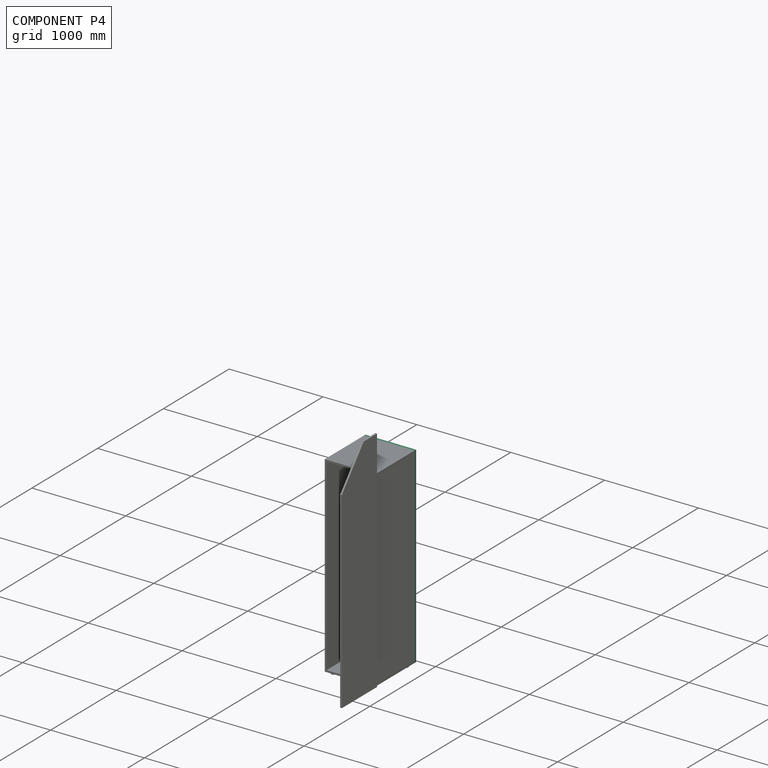
[diagram: component P4 — assembled]
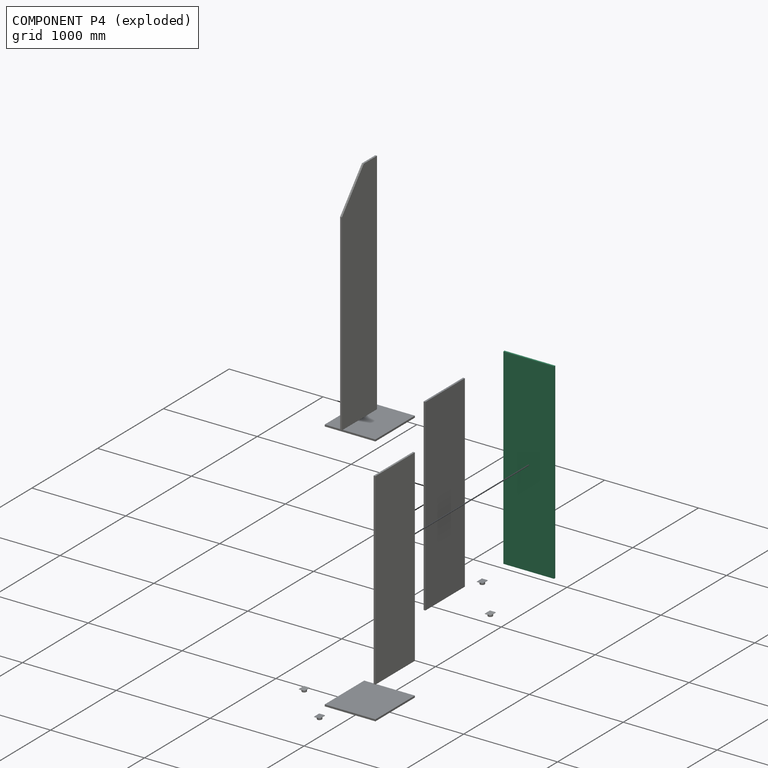
[diagram: component P4 — exploded]
COMPONENT P4 — recipe-attached ("wardrobe_backplate_corpus00_jan", a linked part whose construction recipe lives in a companion FreeCAD document of the same project; that document's serialized recipe follows).
Held by: FASTENED mate "Joint002" to P5.
Construction recipe (the companion document, serialized — sketch geometry with constraints, then the solid features built on it; lengths are millimeters unless a unit is written):

FCSTD DOCUMENT  (FreeCAD 1.0RUnknown)
Label: wardrobe_backplate_corpus00_jan
License: All rights reserved
LicenseURL: https://en.wikipedia.org/wiki/All_rights_reserved
objects: PartDesign::CoordinateSystem×2, Sketcher::SketchObject×1, PartDesign::Pad×1, PartDesign::Body×1
note: 8 computed .brp shape members not serialized (recipe doc carries the construction recipe); baked Part::Feature solids carry a one-line shape summary decoded from their .brp
EXTERNAL_REF file=../../mastersketch.FCStd obj=Spreadsheet

FEATURE [Sketcher::SketchObject] Sketch004
  ArcFitTolerance = 1e-06
  AttachmentSupport = -> [XZ_Plane006]
  FullyConstrained = true
  MakeInternals = false
  MapMode = 5
  Placement = pos=(0,0,0) rot=(1,0,0;1.5708rad)
  expr: Constraints[10] = mastersketch#Spreadsheet.corpus_width
  expr: Constraints[11] = mastersketch#Spreadsheet.corpus_height
  sketch-geometry (5):
    g0: LineSegment StartX=-270 StartY=-1022.5 StartZ=0 EndX=270 EndY=-1022.5 EndZ=0
    g1: LineSegment StartX=270 StartY=-1022.5 StartZ=0 EndX=270 EndY=1022.5 EndZ=0
    g2: LineSegment StartX=270 StartY=1022.5 StartZ=0 EndX=-270 EndY=1022.5 EndZ=0
    g3: LineSegment StartX=-270 StartY=1022.5 StartZ=0 EndX=-270 EndY=-1022.5 EndZ=0
    g4: GeomPoint [constr] X=0 Y=0 Z=0
  constraints (12):
    c: Coincident(g0,g1)
    c: Coincident(g1,g2)
    c: Coincident(g2,g3)
    c: Coincident(g3,g0)
    c: Horizontal(g0)
    c: Horizontal(g2)
    c: Vertical(g1)
    c: Vertical(g3)
    c: Symmetric(g2,g0,g4)
    c: Coincident(g4,g-1)
    c: DistanceX(g0,g0) = 540
    c: DistanceY(g3,g3) = 2045
FEATURE [PartDesign::Pad] Pad004
  Direction = (0,-1,2e-16)
  Length = 19
  Length2 = 10
  Placement = pos=(0,0,0) rot=(1,0,0;1.5708rad)
  Profile = -> Sketch004
  ReferenceAxis = -> Sketch004 [N_Axis]
  Refine = true
  Suppressed = false
  Type = 0
  expr: Length = mastersketch#Spreadsheet.corpus_backplate_thickness
FEATURE [PartDesign::CoordinateSystem] LCS_bottom
  AttacherType = Attacher::AttachEngine3D
  AttachmentSupport = -> [Pad004]
  MapMode = 45
  Placement = pos=(0,-19,-1022.5) rot=(0.57735,0.57735,0.57735;2.0944rad)
FEATURE [PartDesign::CoordinateSystem] LCS_back_right
  AttacherType = Attacher::AttachEngine3D
FEATURE [PartDesign::Body] Body004  label="wardrobe_backplate_corpus00_jan"
  AllowCompound = false
  Group = -> [Sketch004,Pad004,LCS_bottom,LCS_back_right]
  Origin = -> Origin006
  Tip = -> Pad004
PROVENANCE & LICENSES
Assembly and component geometry: a FreeCAD (.FCStd) document from a public repository crawl; components, placements and joints were extracted with FreeCAD and each solid tessellated.
Construction recipes: the document's own serialized feature recipes (and, for linked parts, the recipes of companion documents from the same project).
License: as declared in the source repository (recorded in the dataset sidecar).
Joints: native FreeCAD joints and A2plus constraints are mapped to standard mate types.
Verification: 6 of this assembly's 10 components carry a construction recipe (6 from linked companion documents in the same project); the rest are geometry-only. Every component's tessellation passed the extraction mesh gates (mesh-volume checksum against the B-rep where available, bounding-box inflation <= 2%).
Renders: orthographic iso camera (az 35 / el 25); the floor grid conveys scale (grid pitch printed in each image; no ruler). In the exploded view each component is displaced by its stored offset vector: the offsets alone carry the explosion direction (mate normal/axis signs are not orientation cues and do not encode it), and separation distances are assigned per mate-chain, not proportionally to assembly-order depth.
